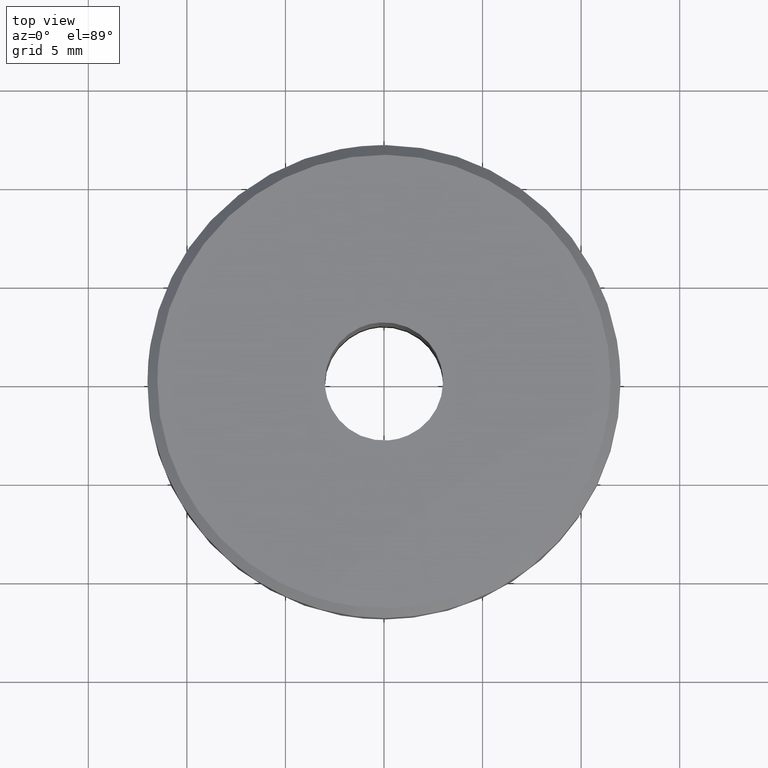
[diagram: clean part render]
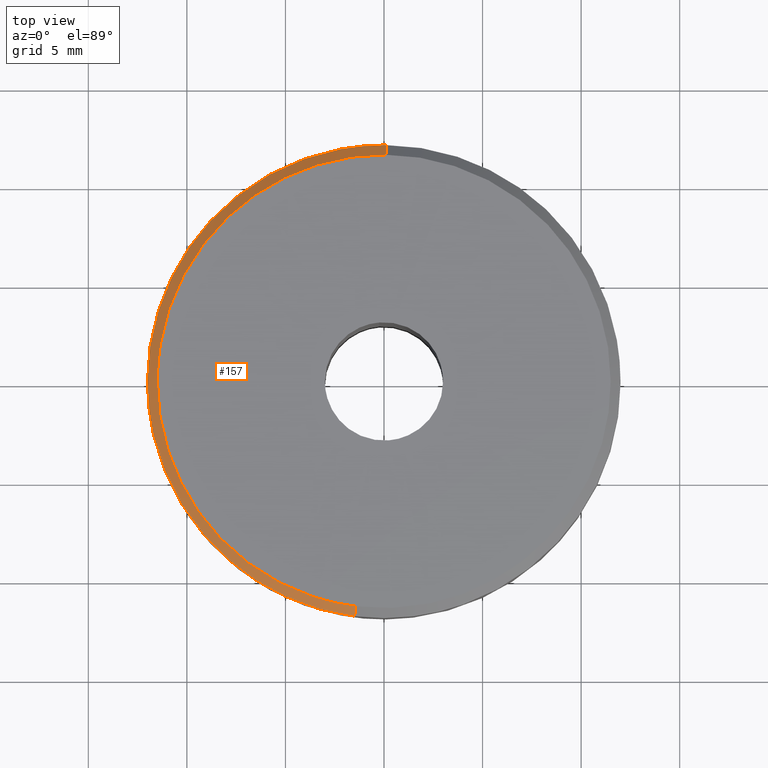
[diagram: same view with one face highlighted and labeled with its STEP entity id]
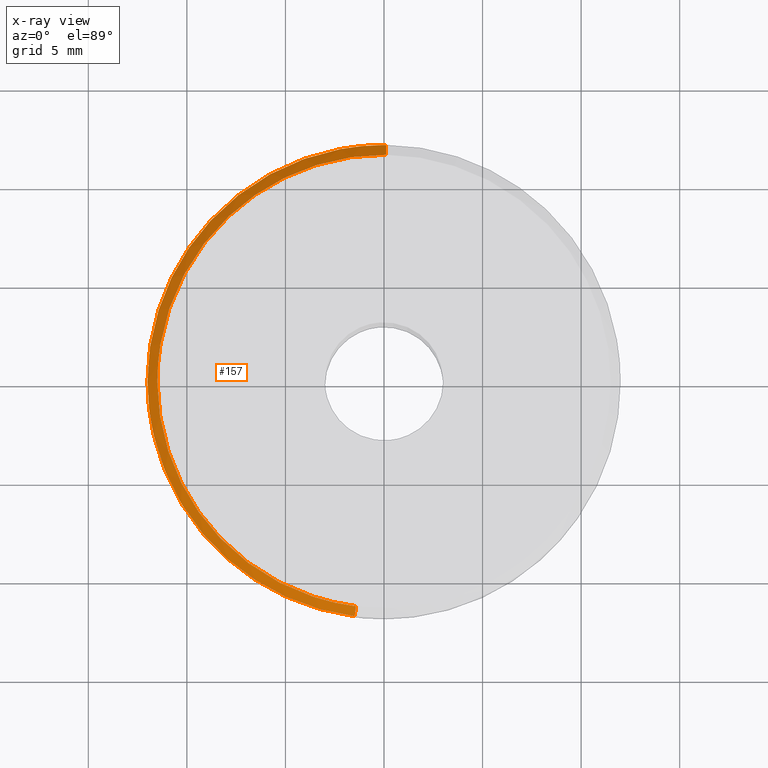
[diagram: x-ray of the same camera — body ghosted, the highlighted face saturated]
A machine part, top view. The second image highlights one B-rep face of the part: STEP entity #157.
The next image is the same camera in x-ray: the body ghosted, the highlighted face saturated — about 0% of this face is hidden behind the body in this view.
In plain terms, the highlighted face is a freeform B-spline surface patch.
Its self-contained STEP definition (entity closure, byte-faithful):
#44=CARTESIAN_POINT('',(-1.425920423892046,-11.398658131320925,15.012499999999999));
#45=CARTESIAN_POINT('',(-11.576330890396889,-10.128887827805423,15.012499999999998));
#46=CARTESIAN_POINT('',(-11.487062591199720,0.100246076537571,15.012499999999999));
#47=CARTESIAN_POINT('',(-11.386816514662147,11.587308667737290,15.012500000000008));
#48=CARTESIAN_POINT('',(0.100246076537571,11.487062591199720,15.012499999999999));
#49=CARTESIAN_POINT('',(-1.491126414984599,-11.919907976771100,14.487187499999999));
#50=CARTESIAN_POINT('',(-12.105705542920147,-10.592072279343483,14.487187500000003));
#51=CARTESIAN_POINT('',(-12.012355088909310,0.104830234716560,14.487187499999999));
#52=CARTESIAN_POINT('',(-11.907524854192753,12.117185323625870,14.487187500000005));
#53=CARTESIAN_POINT('',(0.104830234716560,12.012355088909310,14.487187499999999));
#61=(BOUNDED_SURFACE()B_SPLINE_SURFACE(2,1,((#44,#49),(#45,#50),(#46,#51),(#47,#52),(#48,#53)),.UNSPECIFIED.,.F.,.F.,.U.)B_SPLINE_SURFACE_WITH_KNOTS((3,2,3),(2,2),(0.0,18.311201083861761,38.214680522841952),(0.0,1.0),.UNSPECIFIED.)GEOMETRIC_REPRESENTATION_ITEM()RATIONAL_B_SPLINE_SURFACE(((0.956886118190660,0.956886118190660),(0.730538238691624,0.730538238691624),(1.0,1.0),(0.707106781186548,0.707106781186548),(1.0,1.0)))REPRESENTATION_ITEM('')SURFACE());
#62=CARTESIAN_POINT('',(-1.489536024977577,-11.907194565906501,14.499999999997531));
#63=VERTEX_POINT('',#62);
#64=CARTESIAN_POINT('',(-12.0,0.0,14.500000000000000));
#65=VERTEX_POINT('',#64);
#66=CARTESIAN_POINT('',(-1.489536024977576,-11.907194565906503,14.499999999997526));
#67=CARTESIAN_POINT('',(-12.000000000000002,-10.592383201768106,14.500000000000009));
#68=CARTESIAN_POINT('',(-12.0,0.0,14.500000000000000));
#76=(BOUNDED_CURVE()B_SPLINE_CURVE(2,(#66,#67,#68),.UNSPECIFIED.,.F.,.U.)B_SPLINE_CURVE_WITH_KNOTS((3,3),(0.771473928971248,1.0),.UNSPECIFIED.)CURVE()GEOMETRIC_REPRESENTATION_ITEM()RATIONAL_B_SPLINE_CURVE((0.954005430273657,0.732265053894389,1.0))REPRESENTATION_ITEM(''));
#77=EDGE_CURVE('',#63,#65,#76,.T.);
#78=ORIENTED_EDGE('',*,*,#77,.F.);
#79=CARTESIAN_POINT('',(-1.427472023938972,-11.411061458993739,14.999999999997380));
#80=VERTEX_POINT('',#79);
#81=CARTESIAN_POINT('',(-1.427472023938972,-11.411061458993739,14.999999999997380));
#82=CARTESIAN_POINT('',(-1.489536024977577,-11.907194565906501,14.499999999997531));
#83=QUASI_UNIFORM_CURVE('',1,(#81,#82),.UNSPECIFIED.,.F.,.U.);
#84=EDGE_CURVE('',#80,#63,#83,.T.);
#85=ORIENTED_EDGE('',*,*,#84,.F.);
#86=CARTESIAN_POINT('',(-11.500000000000000,0.0,15.0));
#87=VERTEX_POINT('',#86);
#88=CARTESIAN_POINT('',(-11.500000000000000,0.0,15.0));
#89=CARTESIAN_POINT('',(-11.500000000000000,-10.151033901690676,15.000000000000007));
#90=CARTESIAN_POINT('',(-1.427472023938972,-11.411061458993739,14.999999999997383));
#98=(BOUNDED_CURVE()B_SPLINE_CURVE(2,(#88,#89,#90),.UNSPECIFIED.,.F.,.U.)B_SPLINE_CURVE_WITH_KNOTS((3,3),(0.500000000000000,0.728526071028690),.UNSPECIFIED.)CURVE()GEOMETRIC_REPRESENTATION_ITEM()RATIONAL_B_SPLINE_CURVE((1.0,0.732265053894462,0.954005430273536))REPRESENTATION_ITEM(''));
#99=EDGE_CURVE('',#87,#80,#98,.T.);
#100=ORIENTED_EDGE('',*,*,#99,.F.);
#101=CARTESIAN_POINT('',(0.100355158253234,11.499562115240780,14.999999999997030));
#102=VERTEX_POINT('',#101);
#103=CARTESIAN_POINT('',(0.100355158253234,11.499562115240781,14.999999999997030));
#104=CARTESIAN_POINT('',(0.050178534459976,11.500000000000004,15.000000000000004));
#105=CARTESIAN_POINT('',(0.0,11.500000000000000,15.0));
#106=CARTESIAN_POINT('',(-11.500000000000000,11.500000000000000,14.999999999999995));
#107=CARTESIAN_POINT('',(-11.500000000000000,0.0,15.0));
#115=(BOUNDED_CURVE()B_SPLINE_CURVE(2,(#103,#104,#105,#106,#107),.UNSPECIFIED.,.F.,.U.)B_SPLINE_CURVE_WITH_KNOTS((3,2,3),(0.248460105664342,0.250000000000000,0.500000000000000),.UNSPECIFIED.)CURVE()GEOMETRIC_REPRESENTATION_ITEM()RATIONAL_B_SPLINE_CURVE((0.996414028098853,0.998195901565586,1.0,0.707106781186548,1.0))REPRESENTATION_ITEM(''));
#116=EDGE_CURVE('',#102,#87,#115,.T.);
#117=ORIENTED_EDGE('',*,*,#116,.F.);
#118=CARTESIAN_POINT('',(0.104718426017089,11.999543076774710,14.499999999995021));
#119=VERTEX_POINT('',#118);
#120=CARTESIAN_POINT('',(0.100355158253234,11.499562115240780,14.999999999997030));
#121=CARTESIAN_POINT('',(0.104718426017089,11.999543076774710,14.499999999995021));
#122=QUASI_UNIFORM_CURVE('',1,(#120,#121),.UNSPECIFIED.,.F.,.U.);
#123=EDGE_CURVE('',#102,#119,#122,.T.);
#124=ORIENTED_EDGE('',*,*,#123,.T.);
#125=CARTESIAN_POINT('',(-0.104710458545633,11.999543146295510,14.500000000000030));
#126=VERTEX_POINT('',#125);
#127=CARTESIAN_POINT('',(-0.104710458545633,11.999543146295510,14.500000000000037));
#128=CARTESIAN_POINT('',(-0.052356225903478,12.000000000000004,14.500000000000004));
#129=CARTESIAN_POINT('',(0.0,12.0,14.500000000000000));
#130=CARTESIAN_POINT('',(0.052360209884988,11.999999999999998,14.500000000000002));
#131=CARTESIAN_POINT('',(0.104718426017089,11.999543076774717,14.499999999995023));
#139=(BOUNDED_CURVE()B_SPLINE_CURVE(2,(#127,#128,#129,#130,#131),.UNSPECIFIED.,.F.,.U.)B_SPLINE_CURVE_WITH_KNOTS((3,2,3),(0.248460222619991,0.250000000000000,0.251539894336061),.UNSPECIFIED.)CURVE()GEOMETRIC_REPRESENTATION_ITEM()RATIONAL_B_SPLINE_CURVE((0.996414298767122,0.998196038587652,1.0,0.998195901565114,0.996414028097921))REPRESENTATION_ITEM(''));
#140=EDGE_CURVE('',#126,#119,#139,.T.);
#141=ORIENTED_EDGE('',*,*,#140,.F.);
#142=CARTESIAN_POINT('',(-12.0,0.0,14.500000000000000));
#143=CARTESIAN_POINT('',(-12.0,11.895742425951299,14.499999999999996));
#144=CARTESIAN_POINT('',(-0.104710458545633,11.999543146295510,14.500000000000037));
#152=(BOUNDED_CURVE()B_SPLINE_CURVE(2,(#142,#143,#144),.UNSPECIFIED.,.F.,.U.)B_SPLINE_CURVE_WITH_KNOTS((3,3),(0.0,0.248460222619991),.UNSPECIFIED.)CURVE()GEOMETRIC_REPRESENTATION_ITEM()RATIONAL_B_SPLINE_CURVE((1.0,0.708910742598895,0.996414298767122))REPRESENTATION_ITEM(''));
#153=EDGE_CURVE('',#65,#126,#152,.T.);
#154=ORIENTED_EDGE('',*,*,#153,.F.);
#155=EDGE_LOOP('',(#78,#85,#100,#117,#124,#141,#154));
#156=FACE_OUTER_BOUND('',#155,.T.);
#157=ADVANCED_FACE('',(#156),#61,.T.);